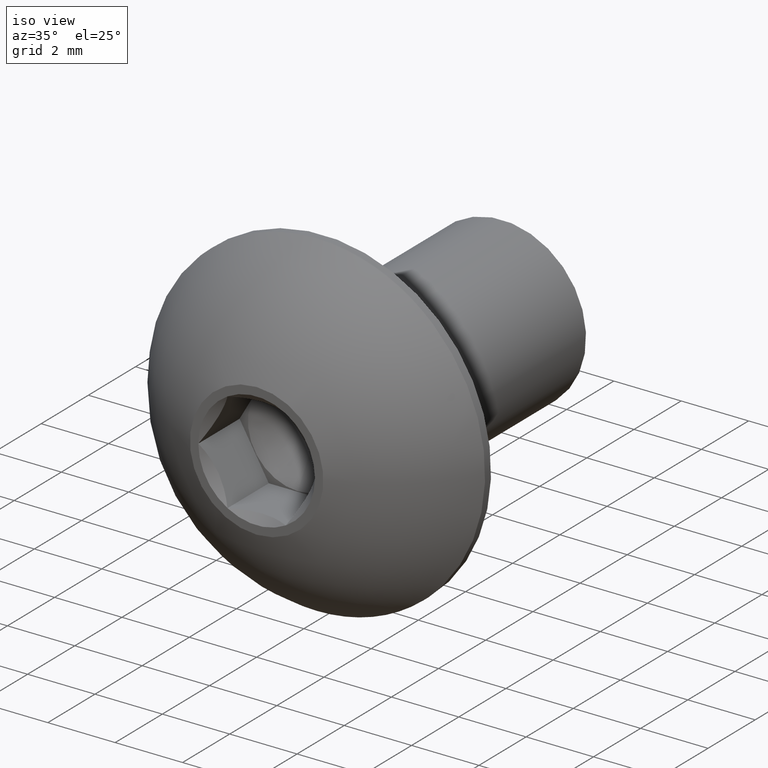
[diagram: clean part render]
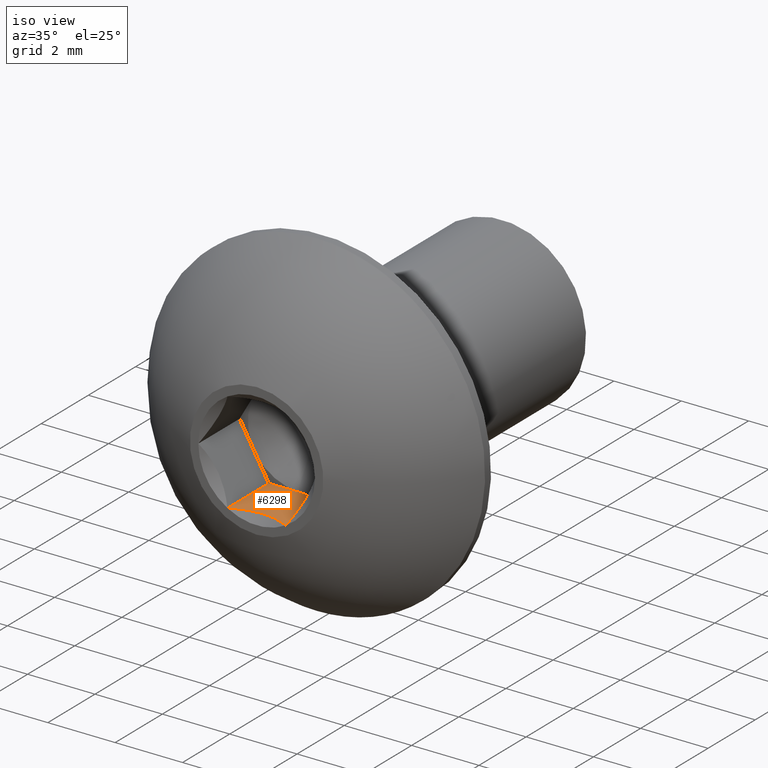
[diagram: same view with one face highlighted and labeled with its STEP entity id]
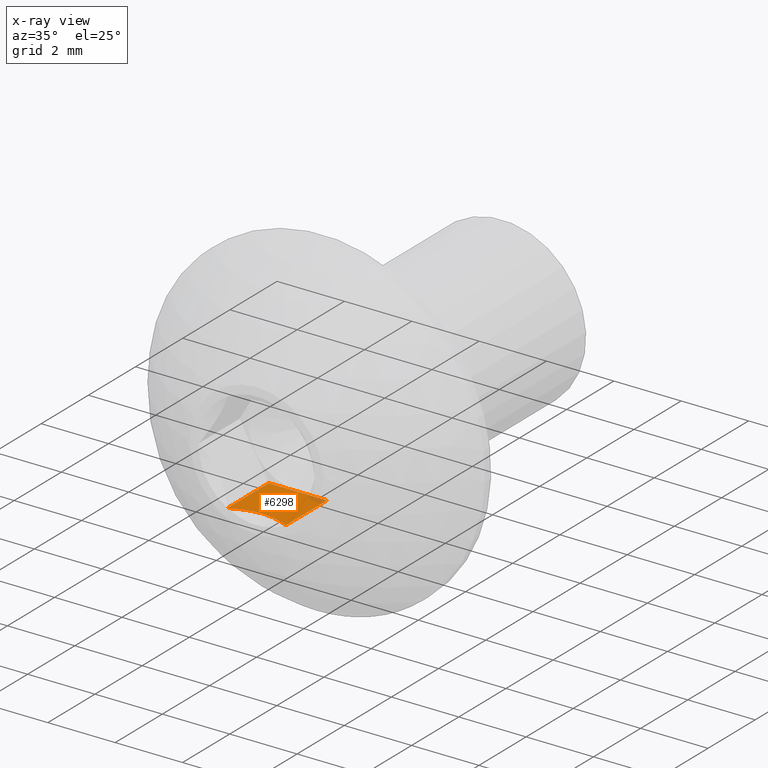
[diagram: x-ray of the same camera — body ghosted, the highlighted face saturated]
A machine part, iso view. The second image highlights one B-rep face of the part: STEP entity #6298.
The next image is the same camera in x-ray: the body ghosted, the highlighted face saturated — about 4% of this face is hidden behind the body in this view.
In plain terms, the highlighted planar face has unit normal (0, 0, -1).
Its self-contained STEP definition (entity closure, byte-faithful):
#287 = CARTESIAN_POINT ( 'NONE',  ( 0.8660254037844150599, 0.000000000000000000, -1.500000000000013545 ) ) ;
#705 = CARTESIAN_POINT ( 'NONE',  ( 0.8660254037844224984, 1.749999999999999778, -1.500000000000000444 ) ) ;
#813 = CARTESIAN_POINT ( 'NONE',  ( 0.8660254037844150599, 0.000000000000000000, -1.500000000000013545 ) ) ;
#896 = DIRECTION ( 'NONE',  ( -1.000000000000000000, 0.000000000000000000, -0.000000000000000000 ) ) ;
#1319 = ORIENTED_EDGE ( 'NONE', *, *, #4937, .F. ) ;
#1651 = VECTOR ( 'NONE', #12624, 1000.000000000000000 ) ;
#1755 = VECTOR ( 'NONE', #12513, 1000.000000000000000 ) ;
#2041 = LINE ( 'NONE', #14805, #8987 ) ;
#3007 = CARTESIAN_POINT ( 'NONE',  ( -0.8660254037844525854, 1.749999999999999778, -1.500000000000000444 ) ) ;
#3787 = CARTESIAN_POINT ( 'NONE',  ( 0.8660254037844224984, 1.749999999999999778, -1.500000000000000444 ) ) ;
#4094 = VERTEX_POINT ( 'NONE', #3787 ) ;
#4264 = VERTEX_POINT ( 'NONE', #12807 ) ;
#4505 = CARTESIAN_POINT ( 'NONE',  ( -0.3040459752401037941, 0.2321353371234733953, -1.500000000000000666 ) ) ;
#4681 = EDGE_CURVE ( 'NONE', #8579, #4264, #7118, .T. ) ;
#4937 = EDGE_CURVE ( 'NONE', #12612, #4094, #5540, .T. ) ;
#5059 = DIRECTION ( 'NONE',  ( 0.000000000000000000, -1.000000000000000000, 0.000000000000000000 ) ) ;
#5540 = LINE ( 'NONE', #3007, #1755 ) ;
#5653 = CARTESIAN_POINT ( 'NONE',  ( 0.7320390422266158659, 0.06699318077891074086, -1.500000000000000666 ) ) ;
#6002 = CARTESIAN_POINT ( 'NONE',  ( -0.5973186776803693920, 0.1343533630520393762, -1.500000000000000666 ) ) ;
#6298 = ADVANCED_FACE ( 'NONE', ( #12636 ), #15342, .F. ) ;
#6555 = LINE ( 'NONE', #705, #1651 ) ;
#6703 = ORIENTED_EDGE ( 'NONE', *, *, #13746, .F. ) ;
#6991 = DIRECTION ( 'NONE',  ( 0.000000000000000000, 0.000000000000000000, -1.000000000000000000 ) ) ;
#7118 = B_SPLINE_CURVE_WITH_KNOTS ( 'NONE', 3,
 ( #813, #5653, #15202, #8064, #11650, #4505, #6002, #7210 ),
 .UNSPECIFIED., .F., .F.,
 ( 4, 2, 2, 4 ),
 ( 0.0009219763052655501664, 0.001370591978583502206, 0.001819207651901454028, 0.002716438998537358106 ),
 .UNSPECIFIED. ) ;
#7210 = CARTESIAN_POINT ( 'NONE',  ( -0.8660254037844525854, 0.000000000000000000, -1.500000000000000444 ) ) ;
#8064 = CARTESIAN_POINT ( 'NONE',  ( 0.3008529503763914814, 0.2085158260613363401, -1.500000000000000222 ) ) ;
#8096 = AXIS2_PLACEMENT_3D ( 'NONE', #11733, #6991, #896 ) ;
#8579 = VERTEX_POINT ( 'NONE', #287 ) ;
#8987 = VECTOR ( 'NONE', #5059, 1000.000000000000000 ) ;
#10820 = ORIENTED_EDGE ( 'NONE', *, *, #4681, .F. ) ;
#11189 = EDGE_LOOP ( 'NONE', ( #6703, #1319, #13581, #10820 ) ) ;
#11650 = CARTESIAN_POINT ( 'NONE',  ( 0.1526480945701645109, 0.2320084559563196369, -1.500000000000000444 ) ) ;
#11733 = CARTESIAN_POINT ( 'NONE',  ( -0.8660254037844525854, 1.749999999999999778, -1.500000000000000444 ) ) ;
#12513 = DIRECTION ( 'NONE',  ( 1.000000000000000000, 0.000000000000000000, 0.000000000000000000 ) ) ;
#12612 = VERTEX_POINT ( 'NONE', #14333 ) ;
#12624 = DIRECTION ( 'NONE',  ( 0.000000000000000000, -1.000000000000000000, 0.000000000000000000 ) ) ;
#12636 = FACE_OUTER_BOUND ( 'NONE', #11189, .T. ) ;
#12807 = CARTESIAN_POINT ( 'NONE',  ( -0.8660254037844525854, 0.000000000000000000, -1.500000000000000444 ) ) ;
#13581 = ORIENTED_EDGE ( 'NONE', *, *, #14036, .T. ) ;
#13746 = EDGE_CURVE ( 'NONE', #4094, #8579, #6555, .T. ) ;
#14036 = EDGE_CURVE ( 'NONE', #12612, #4264, #2041, .T. ) ;
#14333 = CARTESIAN_POINT ( 'NONE',  ( -0.8660254037844525854, 1.749999999999999778, -1.500000000000000444 ) ) ;
#14805 = CARTESIAN_POINT ( 'NONE',  ( -0.8660254037844525854, 1.749999999999999778, -1.500000000000000444 ) ) ;
#15202 = CARTESIAN_POINT ( 'NONE',  ( 0.5911257683501996985, 0.1257893045331486825, -1.500000000000000666 ) ) ;
#15342 = PLANE ( 'NONE',  #8096 ) ;